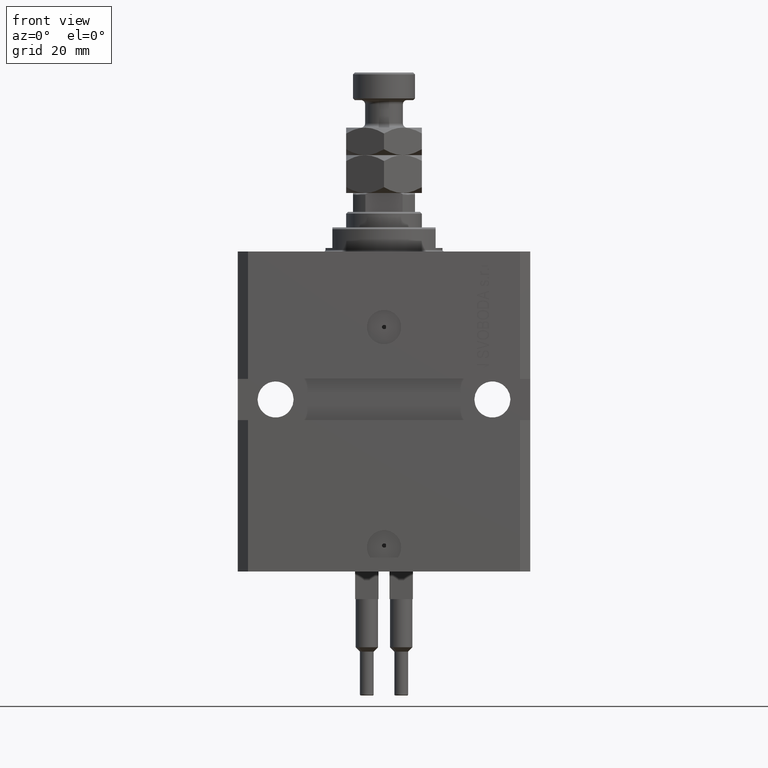
[diagram: clean part render]
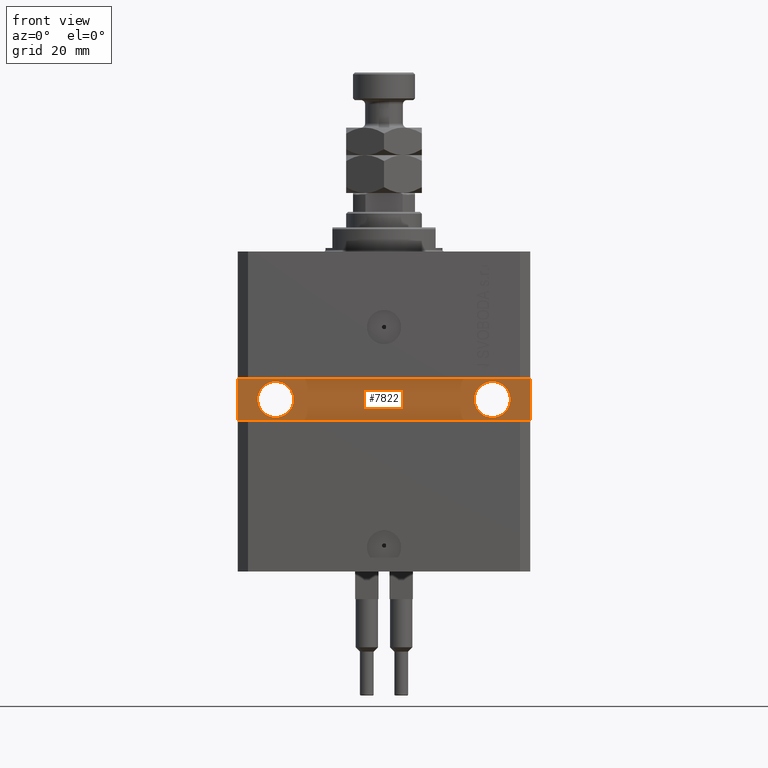
[diagram: same view with one face highlighted and labeled with its STEP entity id]
A machine part, front view. The second image highlights one B-rep face of the part: STEP entity #7822.
In plain terms, the highlighted planar face has unit normal (0, -1, 0).
Its self-contained STEP definition (entity closure, byte-faithful):
#144 = VERTEX_POINT ( 'NONE', #39446 ) ;
#1010 = DIRECTION ( 'NONE',  ( 1.101411730780568590E-16, -1.000000000000000000, 0.000000000000000000 ) ) ;
#2019 = CARTESIAN_POINT ( 'NONE',  ( -42.50000000000000000, -28.50000000000000711, -37.00000000000000711 ) ) ;
#2480 = FACE_BOUND ( 'NONE', #43846, .T. ) ;
#3249 = CARTESIAN_POINT ( 'NONE',  ( 31.50000000000001421, -28.49999999999999645, -43.00000000000000000 ) ) ;
#3432 = ORIENTED_EDGE ( 'NONE', *, *, #43949, .T. ) ;
#4006 = VERTEX_POINT ( 'NONE', #35845 ) ;
#4379 = EDGE_CURVE ( 'NONE', #144, #38044, #27189, .T. ) ;
#5046 = CARTESIAN_POINT ( 'NONE',  ( -26.24999999999998934, -28.50000000000000355, -43.00000000000000000 ) ) ;
#6025 = PLANE ( 'NONE',  #19586 ) ;
#7193 = AXIS2_PLACEMENT_3D ( 'NONE', #42517, #7583, #16164 ) ;
#7583 = DIRECTION ( 'NONE',  ( 1.101411730780568590E-16, -1.000000000000000000, 0.000000000000000000 ) ) ;
#7813 = AXIS2_PLACEMENT_3D ( 'NONE', #47730, #16102, #16602 ) ;
#7822 = ADVANCED_FACE ( 'NONE', ( #2480, #25530, #48806 ), #6025, .T. ) ;
#8570 = VECTOR ( 'NONE', #41697, 1000.000000000000000 ) ;
#11039 = ORIENTED_EDGE ( 'NONE', *, *, #40580, .F. ) ;
#11375 = ORIENTED_EDGE ( 'NONE', *, *, #18560, .T. ) ;
#12273 = EDGE_LOOP ( 'NONE', ( #11039, #45904 ) ) ;
#12406 = DIRECTION ( 'NONE',  ( 1.000000000000000000, 0.000000000000000000, 0.000000000000000000 ) ) ;
#13874 = DIRECTION ( 'NONE',  ( 1.000000000000000000, 1.632680918566406300E-16, 0.000000000000000000 ) ) ;
#14510 = CARTESIAN_POINT ( 'NONE',  ( 26.25000000000001776, -28.49999999999999645, -43.00000000000000000 ) ) ;
#16102 = DIRECTION ( 'NONE',  ( 1.037025423586453699E-16, -1.000000000000000000, 1.848892746611746419E-32 ) ) ;
#16138 = ORIENTED_EDGE ( 'NONE', *, *, #40733, .F. ) ;
#16164 = DIRECTION ( 'NONE',  ( 1.000000000000000000, 0.000000000000000000, 0.000000000000000000 ) ) ;
#16602 = DIRECTION ( 'NONE',  ( 1.000000000000000000, 0.000000000000000000, 0.000000000000000000 ) ) ;
#17251 = CIRCLE ( 'NONE', #23731, 5.249999999999997335 ) ;
#18010 = VERTEX_POINT ( 'NONE', #20386 ) ;
#18305 = CIRCLE ( 'NONE', #7813, 5.249999999999997335 ) ;
#18560 = EDGE_CURVE ( 'NONE', #30169, #144, #20828, .T. ) ;
#18684 = DIRECTION ( 'NONE',  ( 1.000000000000000000, 0.000000000000000000, 0.000000000000000000 ) ) ;
#19170 = EDGE_CURVE ( 'NONE', #18010, #25726, #18305, .T. ) ;
#19394 = CARTESIAN_POINT ( 'NONE',  ( -42.50000000000000000, -28.50000000000000711, -37.00000000000000711 ) ) ;
#19586 = AXIS2_PLACEMENT_3D ( 'NONE', #32875, #21716, #13874 ) ;
#19665 = AXIS2_PLACEMENT_3D ( 'NONE', #40253, #1010, #12406 ) ;
#20386 = CARTESIAN_POINT ( 'NONE',  ( 36.75000000000001421, -28.49999999999999645, -43.00000000000000000 ) ) ;
#20828 = LINE ( 'NONE', #37272, #24795 ) ;
#21716 = DIRECTION ( 'NONE',  ( 1.632680918566406300E-16, -1.000000000000000000, 0.000000000000000000 ) ) ;
#22697 = LINE ( 'NONE', #19394, #8570 ) ;
#23634 = CARTESIAN_POINT ( 'NONE',  ( 42.50000000000001421, -28.49999999999999289, -48.99999999999999289 ) ) ;
#23696 = EDGE_CURVE ( 'NONE', #4006, #28282, #39546, .T. ) ;
#23731 = AXIS2_PLACEMENT_3D ( 'NONE', #3249, #30854, #18684 ) ;
#23906 = ORIENTED_EDGE ( 'NONE', *, *, #48166, .T. ) ;
#24795 = VECTOR ( 'NONE', #48157, 1000.000000000000000 ) ;
#24820 = ORIENTED_EDGE ( 'NONE', *, *, #19170, .F. ) ;
#25530 = FACE_BOUND ( 'NONE', #12273, .T. ) ;
#25726 = VERTEX_POINT ( 'NONE', #14510 ) ;
#25839 = CARTESIAN_POINT ( 'NONE',  ( 42.50000000000001421, -28.49999999999999289, -36.99999999999998579 ) ) ;
#27189 = LINE ( 'NONE', #23634, #27591 ) ;
#27591 = VECTOR ( 'NONE', #39087, 1000.000000000000000 ) ;
#28282 = VERTEX_POINT ( 'NONE', #5046 ) ;
#30169 = VERTEX_POINT ( 'NONE', #49805 ) ;
#30383 = LINE ( 'NONE', #25839, #31365 ) ;
#30854 = DIRECTION ( 'NONE',  ( 1.037025423586453699E-16, -1.000000000000000000, 1.848892746611746419E-32 ) ) ;
#31104 = ORIENTED_EDGE ( 'NONE', *, *, #4379, .T. ) ;
#31365 = VECTOR ( 'NONE', #45822, 1000.000000000000000 ) ;
#32875 = CARTESIAN_POINT ( 'NONE',  ( 4.790119779726142858E-15, -28.50000000000000000, 0.000000000000000000 ) ) ;
#35845 = CARTESIAN_POINT ( 'NONE',  ( -36.74999999999998579, -28.50000000000000355, -43.00000000000000000 ) ) ;
#37272 = CARTESIAN_POINT ( 'NONE',  ( -42.50000000000000000, -28.50000000000000711, -48.99999999999999289 ) ) ;
#38044 = VERTEX_POINT ( 'NONE', #38552 ) ;
#38552 = CARTESIAN_POINT ( 'NONE',  ( 42.50000000000001421, -28.49999999999999289, -36.99999999999998579 ) ) ;
#39087 = DIRECTION ( 'NONE',  ( 0.000000000000000000, 0.000000000000000000, 1.000000000000000000 ) ) ;
#39446 = CARTESIAN_POINT ( 'NONE',  ( 42.50000000000001421, -28.49999999999999289, -48.99999999999999289 ) ) ;
#39546 = CIRCLE ( 'NONE', #7193, 5.249999999999997335 ) ;
#40253 = CARTESIAN_POINT ( 'NONE',  ( -31.49999999999998579, -28.50000000000000355, -43.00000000000000000 ) ) ;
#40580 = EDGE_CURVE ( 'NONE', #28282, #4006, #41504, .T. ) ;
#40733 = EDGE_CURVE ( 'NONE', #25726, #18010, #17251, .T. ) ;
#41504 = CIRCLE ( 'NONE', #19665, 5.249999999999997335 ) ;
#41697 = DIRECTION ( 'NONE',  ( 0.000000000000000000, 0.000000000000000000, -1.000000000000000000 ) ) ;
#42517 = CARTESIAN_POINT ( 'NONE',  ( -31.49999999999998579, -28.50000000000000355, -43.00000000000000000 ) ) ;
#43813 = EDGE_LOOP ( 'NONE', ( #11375, #31104, #23906, #3432 ) ) ;
#43846 = EDGE_LOOP ( 'NONE', ( #24820, #16138 ) ) ;
#43949 = EDGE_CURVE ( 'NONE', #46441, #30169, #22697, .T. ) ;
#45822 = DIRECTION ( 'NONE',  ( -1.000000000000000000, -1.632680918566406300E-16, -2.449021377849609204E-16 ) ) ;
#45904 = ORIENTED_EDGE ( 'NONE', *, *, #23696, .F. ) ;
#46441 = VERTEX_POINT ( 'NONE', #2019 ) ;
#47730 = CARTESIAN_POINT ( 'NONE',  ( 31.50000000000001421, -28.49999999999999645, -43.00000000000000000 ) ) ;
#48157 = DIRECTION ( 'NONE',  ( 1.000000000000000000, 1.632680918566406300E-16, 0.000000000000000000 ) ) ;
#48166 = EDGE_CURVE ( 'NONE', #38044, #46441, #30383, .T. ) ;
#48806 = FACE_OUTER_BOUND ( 'NONE', #43813, .T. ) ;
#49805 = CARTESIAN_POINT ( 'NONE',  ( -42.50000000000000000, -28.50000000000000711, -48.99999999999999289 ) ) ;